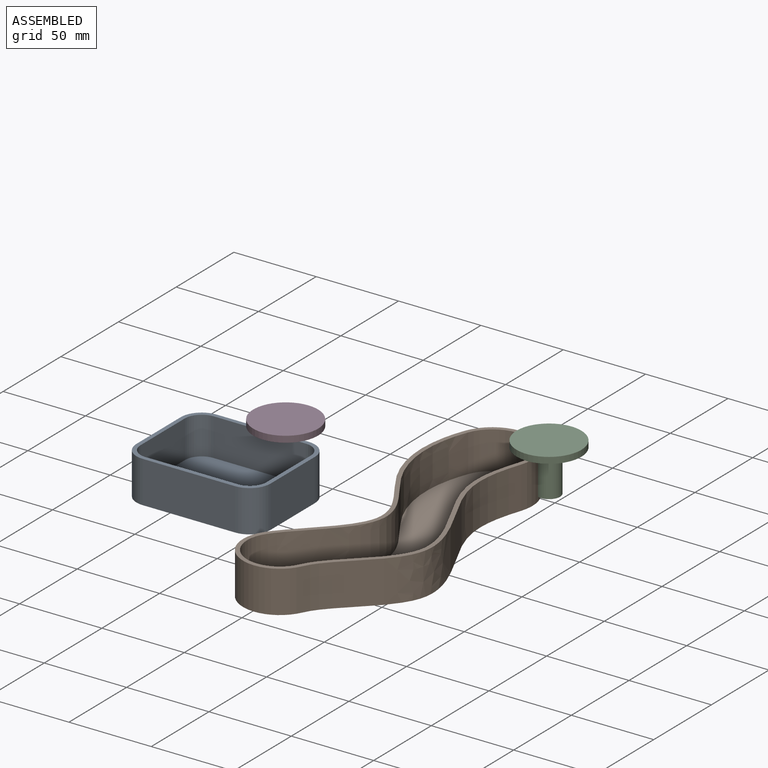
[diagram: assembled view]
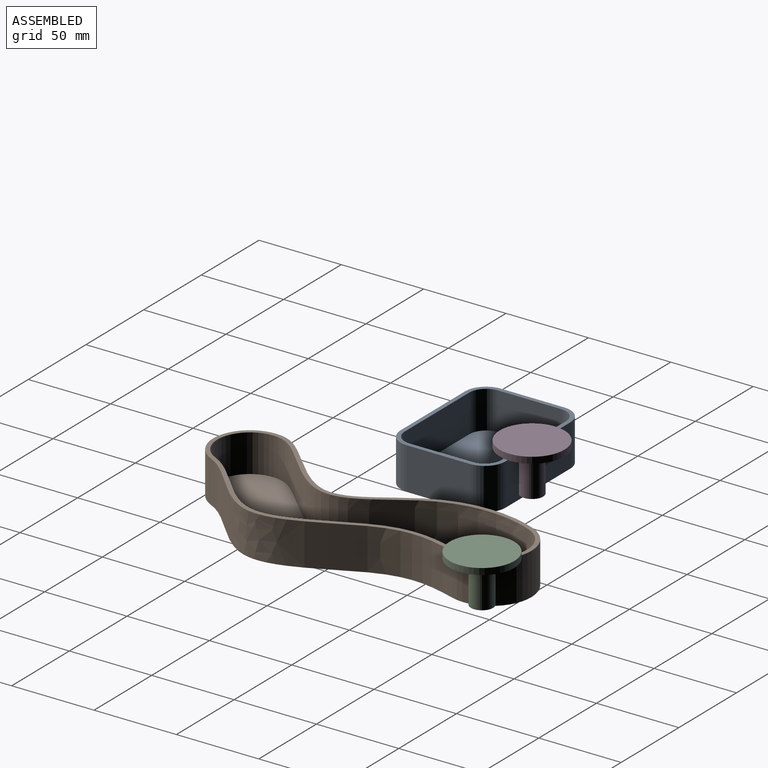
[diagram: assembled view, second angle]
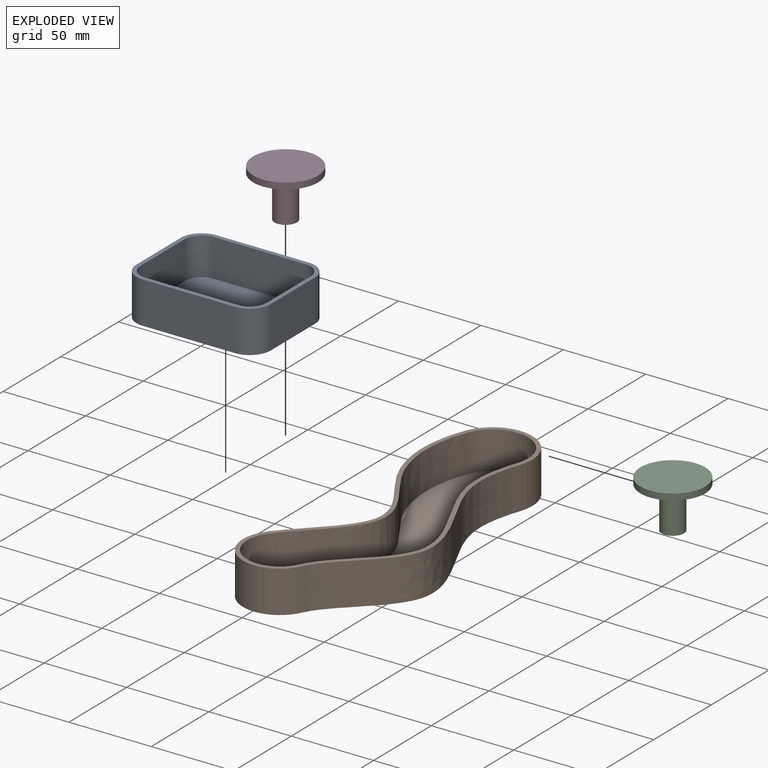
[diagram: exploded view]
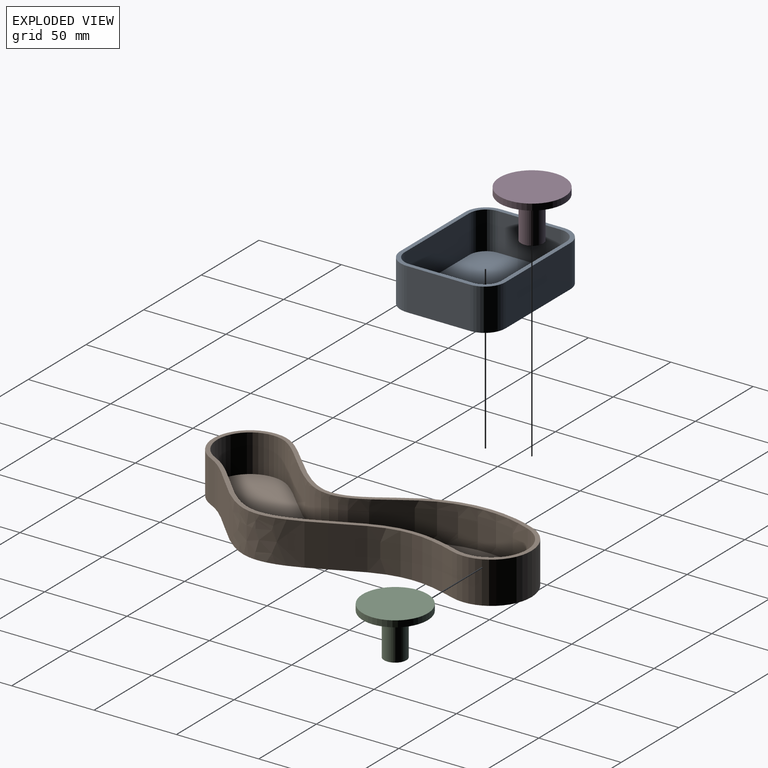
[diagram: exploded view, second angle]
ASSEMBLY  parts=4 mates=2
PART A: 19 faces, bbox 81.4x63.8x25.4 mm
  f0: cylinder r=12.7mm len=25.4mm, axis (0,0,-1), area 506.7mm2, adj f1,f7,f8,f9
  f1: plane 56.05x25.4mm, normal (0,-1,0), area 1423.5mm2, adj f0,f2,f8,f9
  f2: cylinder r=12.7mm len=25.4mm, axis (0,0,-1), area 506.7mm2, adj f1,f3,f8,f9
  f3: plane 38.39x25.4mm, normal (1,0,0), area 975mm2, adj f2,f4,f8,f9
  f4: cylinder r=12.7mm len=25.4mm, axis (0,0,-1), area 506.7mm2, adj f3,f5,f8,f9
  f5: plane 56.05x25.4mm, normal (0,1,0), area 1423.5mm2, adj f4,f6,f8,f9
  f6: cylinder r=12.7mm len=25.4mm, axis (0,0,-1), area 506.7mm2, adj f5,f7,f8,f9
  f7: plane 38.39x25.4mm, normal (-1,0,0), area 975mm2, adj f0,f6,f8,f9
  f8: plane 81.45x63.79mm, normal (0,0,1), area 662.1mm2, adj f0,f1,f2,f3,f4,f5,f6,f7
  f9: plane 81.45x63.79mm, normal (0,0,-1), area 5056.7mm2, adj f0,f1,f2,f3,f4,f5,f6,f7
  f10: cylinder r=10.16mm len=22.86mm, axis (0,0,-1), area 364.8mm2, adj f8,f11,f17,f18
  f11: plane 56.05x22.86mm, normal (0,1,0), area 1281.2mm2, adj f8,f10,f12,f18
  f12: cylinder r=10.16mm len=22.86mm, axis (0,0,-1), area 364.8mm2, adj f8,f11,f13,f18
  f13: plane 38.39x22.86mm, normal (-1,0,0), area 877.5mm2, adj f8,f12,f14,f18
  f14: cylinder r=10.16mm len=22.86mm, axis (0,0,-1), area 364.8mm2, adj f8,f13,f15,f18
  f15: plane 56.05x22.86mm, normal (0,-1,0), area 1281.2mm2, adj f8,f14,f16,f18
  f16: cylinder r=10.16mm len=22.86mm, axis (0,0,-1), area 364.8mm2, adj f8,f15,f17,f18
  f17: plane 38.39x22.86mm, normal (1,0,0), area 877.5mm2, adj f8,f10,f16,f18
  f18: plane 76.37x58.71mm, normal (0,0,1), area 4394.6mm2, adj f10,f11,f12,f13,f14,f15,f16,f17
PART B: 11 faces, bbox 84.9x205.6x25.4 mm
  f0: extruded ~157.87x38.46mm, area 4549.9mm2, adj f1,f3,f4,f5
  f1: cylinder r=22.36mm len=42.6mm, axis (0,0,-1), area 1795.2mm2, adj f0,f2,f4,f5
  f2: extruded ~160.78x40.04mm, area 4589.1mm2, adj f1,f3,f4,f5
  f3: cylinder r=24.32mm len=46.97mm, axis (0,0,-1), area 1908.3mm2, adj f0,f2,f4,f5
  f4: plane 205.6x84.85mm, normal (0,0,1), area 1262.9mm2, adj f0,f1,f2,f3,f6,f7,f8,f9
  f5: plane 205.6x84.85mm, normal (0,0,-1), area 9128.8mm2, adj f0,f1,f2,f3
  f6: extruded ~158.07x38.73mm, area 4099.3mm2, adj f4,f7,f9,f10
  f7: cylinder r=19.82mm len=37.77mm, axis (0,0,-1), area 1432.1mm2, adj f4,f6,f8,f10
  f8: extruded ~160.5x39.8mm, area 4124.9mm2, adj f4,f7,f9,f10
  f9: cylinder r=21.78mm len=42.06mm, axis (0,0,-1), area 1538.1mm2, adj f4,f6,f8,f10
  f10: plane 200.52x77.62mm, normal (0,0,1), area 7865.8mm2, adj f6,f7,f8,f9
PART C: 5 faces, bbox 39.4x39.4x29.2 mm
  f0: cylinder r=6.76mm len=25.4mm, axis (0,0,-1), area 1078.4mm2, adj f1,f4
  f1: plane 13.51x13.51mm, normal (0,0,-1), area 143.4mm2, adj f0
  f2: cylinder r=19.69mm len=39.38mm, axis (0,0,-1), area 471.3mm2, adj f3,f4
  f3: plane 39.38x39.38mm, normal (0,0,1), area 1217.8mm2, adj f2
  f4: plane 39.38x39.38mm, normal (0,0,-1), area 1074.3mm2, adj f0,f2
PART D: 5 faces, bbox 39.4x39.4x29.2 mm
  f0: cylinder r=6.76mm len=25.4mm, axis (0,0,-1), area 1078.4mm2, adj f1,f4
  f1: plane 13.51x13.51mm, normal (0,0,-1), area 143.4mm2, adj f0
  f2: cylinder r=19.69mm len=39.38mm, axis (0,0,-1), area 471.3mm2, adj f3,f4
  f3: plane 39.38x39.38mm, normal (0,0,1), area 1217.8mm2, adj f2
  f4: plane 39.38x39.38mm, normal (0,0,-1), area 1074.3mm2, adj f0,f2
PLACE A t=(-53.33,10.46,-4.56)mm fixed
PLACE B t=(-71.49,13.36,-4.56)mm fixed
PLACE C rot(axis=(0,0,1),77.9deg) t=(87.27,235.53,-2.02)mm
PLACE D rot(axis=(0,0,-1),97.9deg) t=(-179.92,30.92,-2.02)mm
MATE planar D.f0 <-> A.f18  axis (0,0,-1) through (-121.86,40.59,-2.02)mm
MATE planar C.f0 <-> B.f10  axis (0,0,-1) through (-0.31,95.29,-2.02)mm
